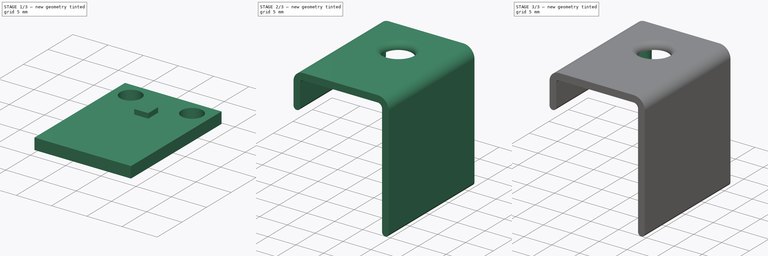
[diagram: build sequence overview — one tinted view per stage of 3, left to right]
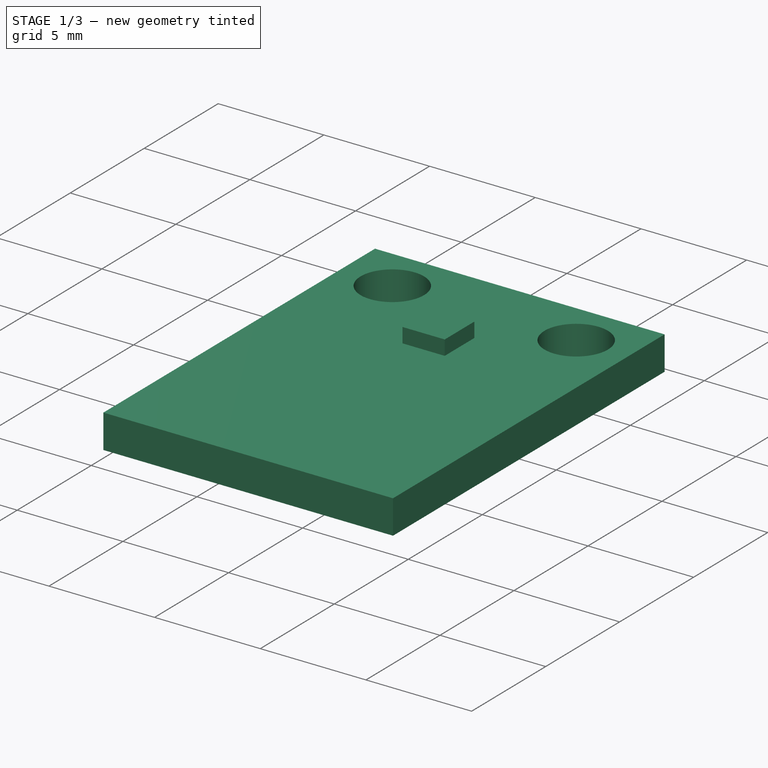
[diagram: stage 1 of 3 — iso view after this stage's code; geometry added in this stage tinted green]
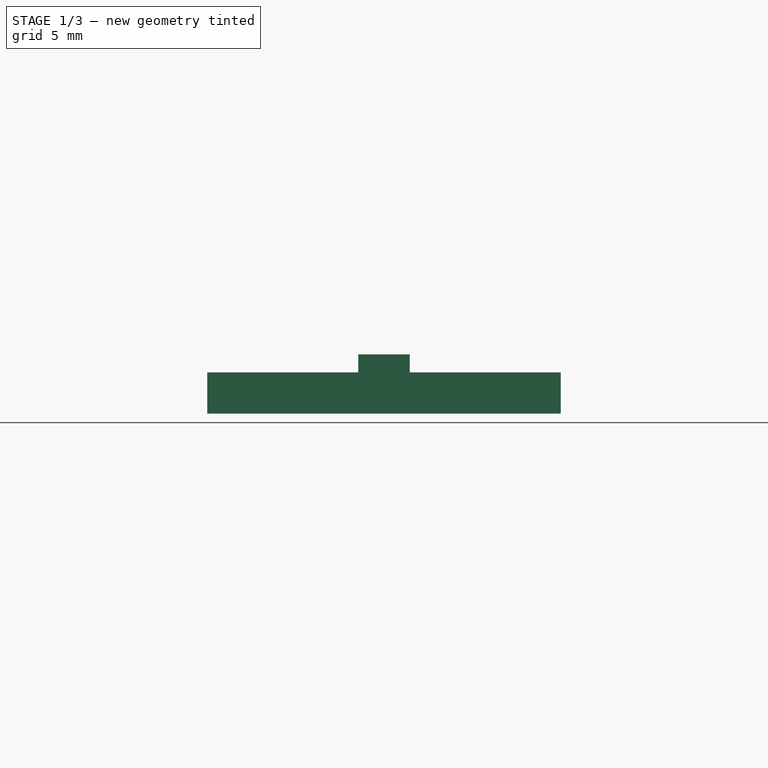
[diagram: stage 1 of 3 — front view after this stage's code; geometry added in this stage tinted green]
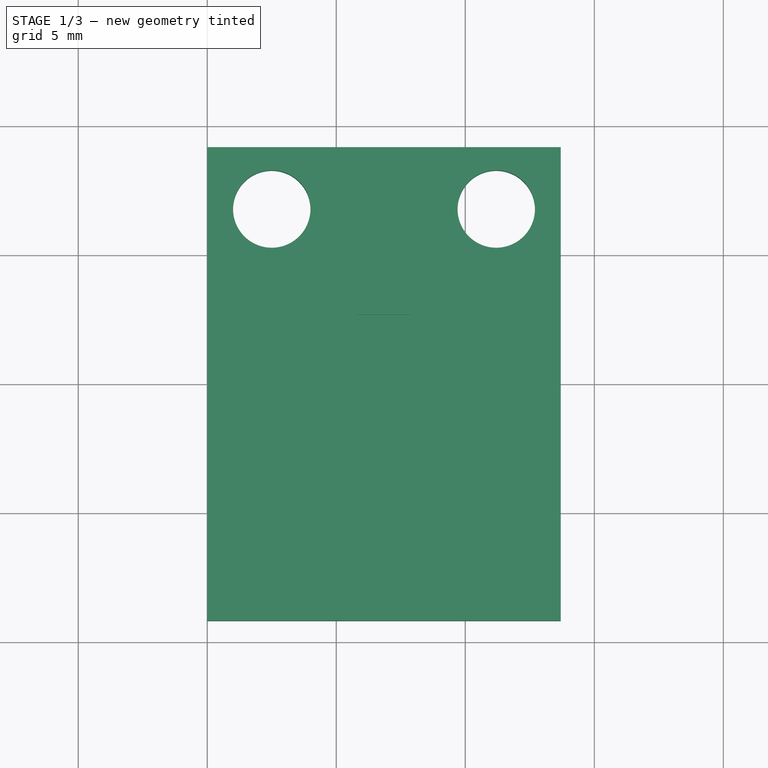
[diagram: stage 1 of 3 — top view after this stage's code; geometry added in this stage tinted green]
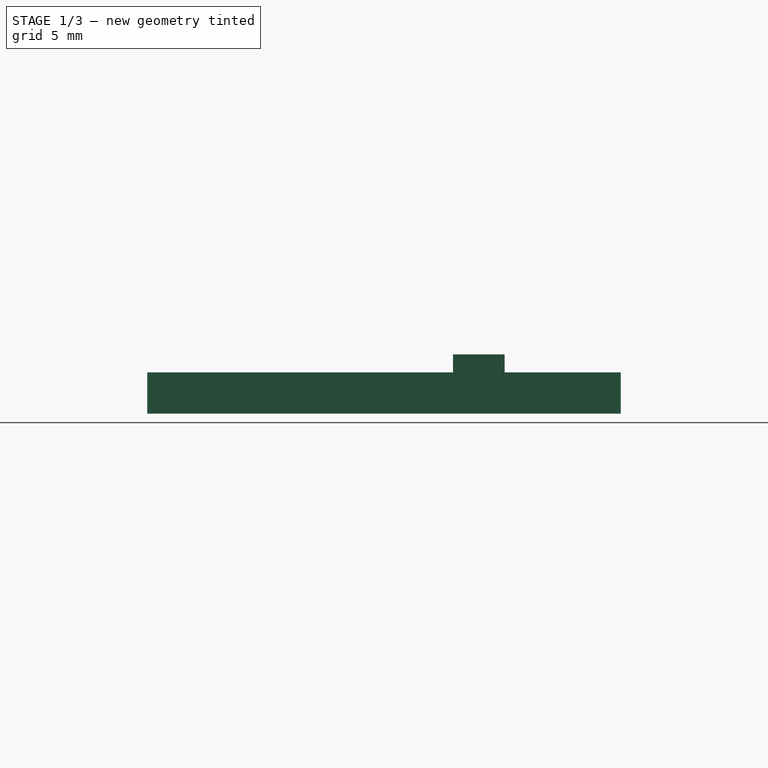
[diagram: stage 1 of 3 — right view after this stage's code; geometry added in this stage tinted green]
FCSTD DOCUMENT  (FreeCAD 0.19R27636 (Git))
Label: case
License: Creative Commons Attribution
LicenseURL: http://creativecommons.org/licenses/by/4.0/
objects: Sketcher::SketchObject×5, PartDesign::Pad×4, PartDesign::Body×2, PartDesign::Fillet×2, Spreadsheet::Sheet×1, PartDesign::ShapeBinder×1, Part::SubShapeBinder×1, PartDesign::Pocket×1
note: 30 computed .brp shape members not serialized (recipe doc carries the construction recipe); baked Part::Feature solids carry a one-line shape summary decoded from their .brp

FEATURE [Spreadsheet::Sheet] Spreadsheet  label="dim"
  PythonMode = false
  cells = A1=wall thickness; B1(wall_thickness)==1.2mm; A2=internal gaps; B2(internal_gaps)==0.5mm; A3=holes diameter; B3(holes_diameter)==3mm
FEATURE [Sketcher::SketchObject] Sketch003
  FullyConstrained = true
  MapMode = 5
  Support = -> [XY_Plane001]
  expr: Constraints[11] = <<dim>>.holes_diameter
  sketch-geometry (9):
    g0: LineSegment StartX=0 StartY=9.175 StartZ=0 EndX=13.7 EndY=9.175 EndZ=0
    g1: LineSegment StartX=13.7 StartY=9.175 StartZ=0 EndX=13.7 EndY=-9.175 EndZ=0
    g2: LineSegment StartX=13.7 StartY=-9.175 StartZ=0 EndX=0 EndY=-9.175 EndZ=0
    g3: LineSegment StartX=0 StartY=-9.175 StartZ=0 EndX=0 EndY=9.175 EndZ=0
    g4: Circle CenterX=2.5 CenterY=6.775 CenterZ=0 NormalX=0 NormalY=0 NormalZ=1 AngleXU=0 Radius=1.5
    g5: Circle CenterX=11.2 CenterY=6.775 CenterZ=0 NormalX=0 NormalY=0 NormalZ=1 AngleXU=0 Radius=1.5
    g6: LineSegment [constr] StartX=4 StartY=6.775 StartZ=0 EndX=9.7 EndY=6.775 EndZ=0
    g7: LineSegment [constr] StartX=6.85 StartY=6.775 StartZ=0 EndX=6.85 EndY=9.175 EndZ=0
    g8: LineSegment [constr] StartX=2.5 StartY=8.275 StartZ=0 EndX=2.5 EndY=9.175 EndZ=0
  constraints (27):
    c: Coincident(g0,g1)
    c: Coincident(g1,g2)
    c: Coincident(g2,g3)
    c: Coincident(g3,g0)
    c: Horizontal(g0)
    c: Horizontal(g2)
    c: Vertical(g1)
    c: Vertical(g3)
    c: Distance(g0) = 13.7
    c: Distance(g3) = 18.35
    c: Symmetric(g0,g2,g-1)
    c: Diameter(g4) = 3
    c: Equal(g4,g5)
    c: PointOnObject(g6,g4)
    c: PointOnObject(g6,g5)
    c: Distance(g6) = 5.7
    c: Horizontal(g6)
    c: Perpendicular(g4,g6)
    c: Perpendicular(g5,g6)
    c: Vertical(g7)
    c: Symmetric(g0,g0,g7)
    c: Symmetric(g6,g6,g7)
    c: PointOnObject(g8,g4)
    c: PointOnObject(g8,g0)
    c: Vertical(g8)
    c: Distance(g8) = 0.9
    c: Perpendicular(g4,g8)
FEATURE [PartDesign::Pad] Pad002
  ClaimChildren = false
  Direction = (1,1,1)
  Fit = 0
  FitJoin = 0
  InnerFit = 0
  InnerFitJoin = 0
  InnerTaperAngle = 0
  InnerTaperAngleRev = 0
  Length = 1.6
  Length2 = 100
  Midplane = true
  NewSolid = false
  Profile = -> Sketch003
  Suppress = false
  Type = 0
  UsePipeForDraft = true
FEATURE [Sketcher::SketchObject] Sketch004
  ExternalGeometry = -> [Pad002]
  FullyConstrained = true
  MapMode = 5
  Placement = pos=(0,0,0.8) rot=(0,0,1;0rad)
  Support = -> [Pad002]
  sketch-geometry (8):
    g0: LineSegment StartX=5.85 StartY=4.675 StartZ=0 EndX=7.85 EndY=4.675 EndZ=0
    g1: LineSegment StartX=7.85 StartY=4.675 StartZ=0 EndX=7.85 EndY=2.675 EndZ=0
    g2: LineSegment StartX=7.85 StartY=2.675 StartZ=0 EndX=5.85 EndY=2.675 EndZ=0
    g3: LineSegment StartX=5.85 StartY=2.675 StartZ=0 EndX=5.85 EndY=4.675 EndZ=0
    g4: LineSegment [constr] StartX=11.2 StartY=5.275 StartZ=0 EndX=11.2 EndY=4.675 EndZ=0
    g5: LineSegment [constr] StartX=11.2 StartY=4.675 StartZ=0 EndX=7.85 EndY=4.675 EndZ=0
    g6: LineSegment [constr] StartX=5.85 StartY=4.675 StartZ=0 EndX=2.5 EndY=4.675 EndZ=0
    g7: LineSegment [constr] StartX=2.5 StartY=4.675 StartZ=0 EndX=2.5 EndY=5.275 EndZ=0
  constraints (24):
    c: Coincident(g0,g1)
    c: Coincident(g1,g2)
    c: Coincident(g2,g3)
    c: Coincident(g3,g0)
    c: Horizontal(g0)
    c: Horizontal(g2)
    c: Vertical(g1)
    c: Vertical(g3)
    c: PointOnObject(g4,g-3)
    c: Vertical(g4)
    c: Coincident(g5,g4)
    c: Coincident(g5,g0)
    c: Horizontal(g5)
    c: Distance(g4) = 0.6
    c: Equal(g0,g1)
    c: Distance(g0) = 2
    c: Coincident(g6,g0)
    c: Horizontal(g6)
    c: Coincident(g7,g6)
    c: PointOnObject(g7,g-4)
    c: Vertical(g7)
    c: Equal(g6,g5)
    c: Perpendicular(g-4,g7)
    c: Perpendicular(g-3,g4)
FEATURE [PartDesign::Pad] Pad003
  BaseFeature = -> Pad002
  ClaimChildren = false
  Direction = (1,1,1)
  Fit = 0
  FitJoin = 0
  InnerFit = 0
  InnerFitJoin = 0
  InnerTaperAngle = 0
  InnerTaperAngleRev = 0
  Length = 0.7
  Length2 = 100
  NewSolid = false
  Profile = -> Sketch004
  Suppress = false
  Type = 0
  UsePipeForDraft = true
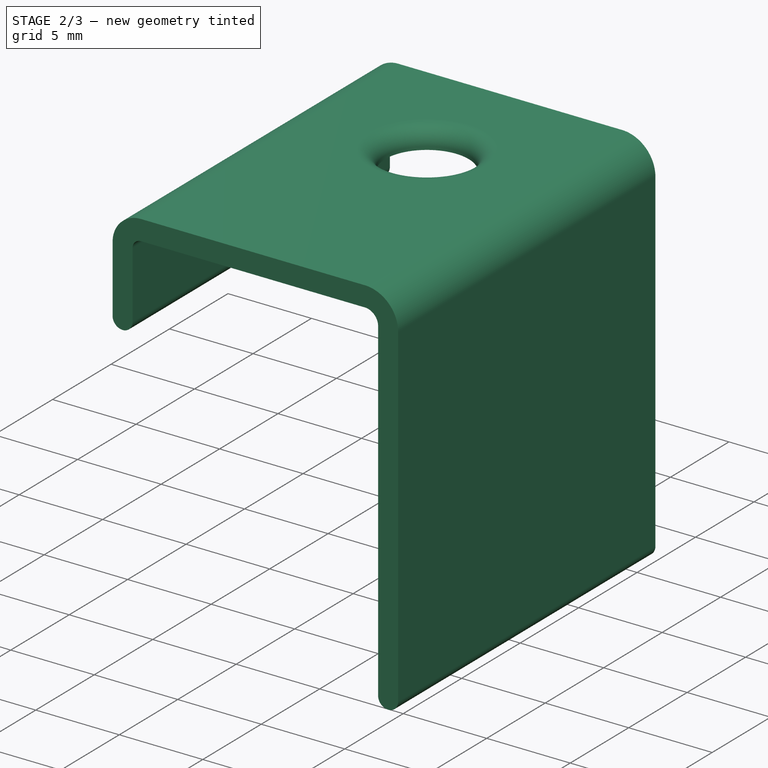
[diagram: stage 2 of 3 — iso view after this stage's code; geometry added in this stage tinted green]
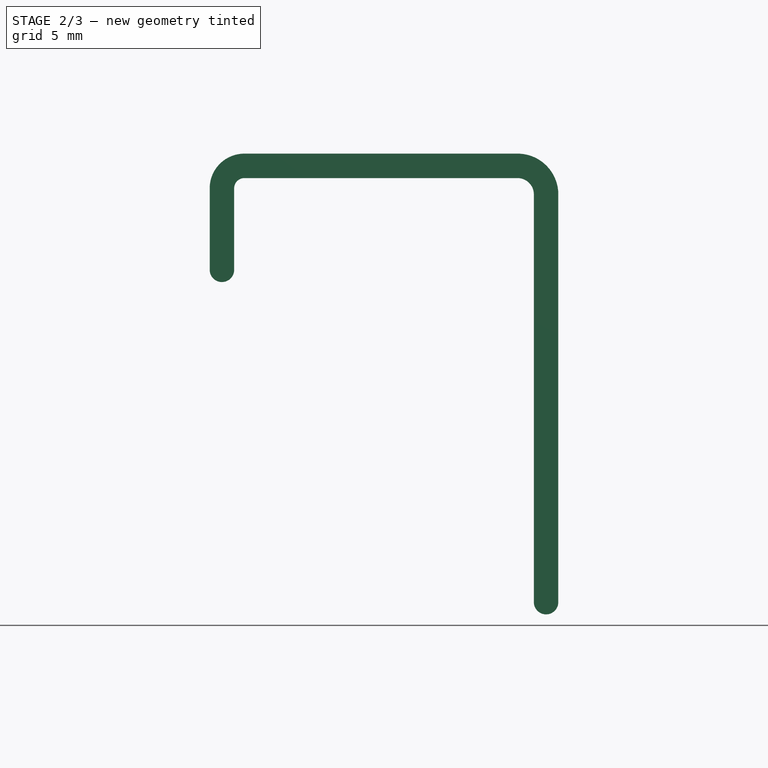
[diagram: stage 2 of 3 — front view after this stage's code; geometry added in this stage tinted green]
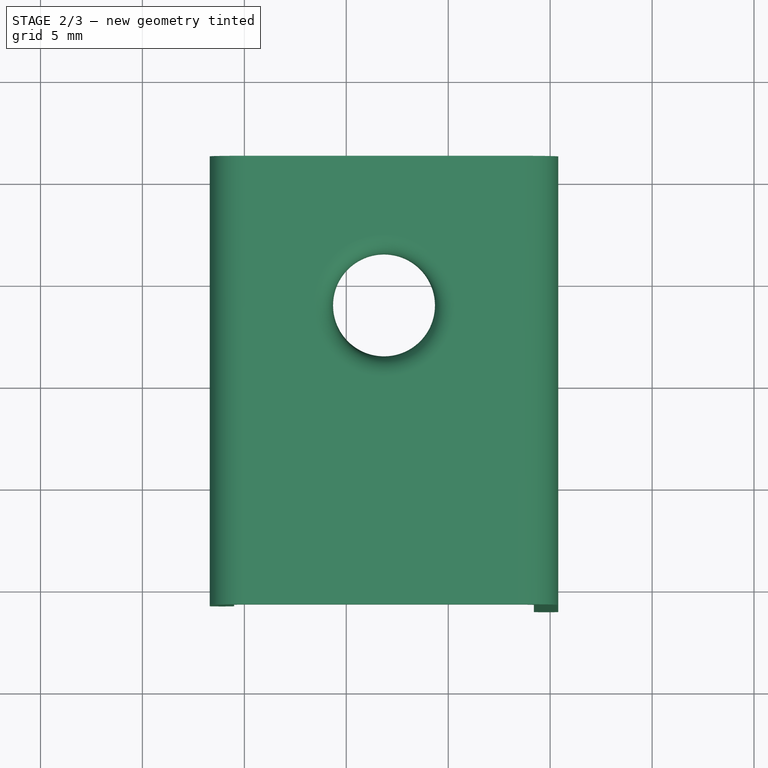
[diagram: stage 2 of 3 — top view after this stage's code; geometry added in this stage tinted green]
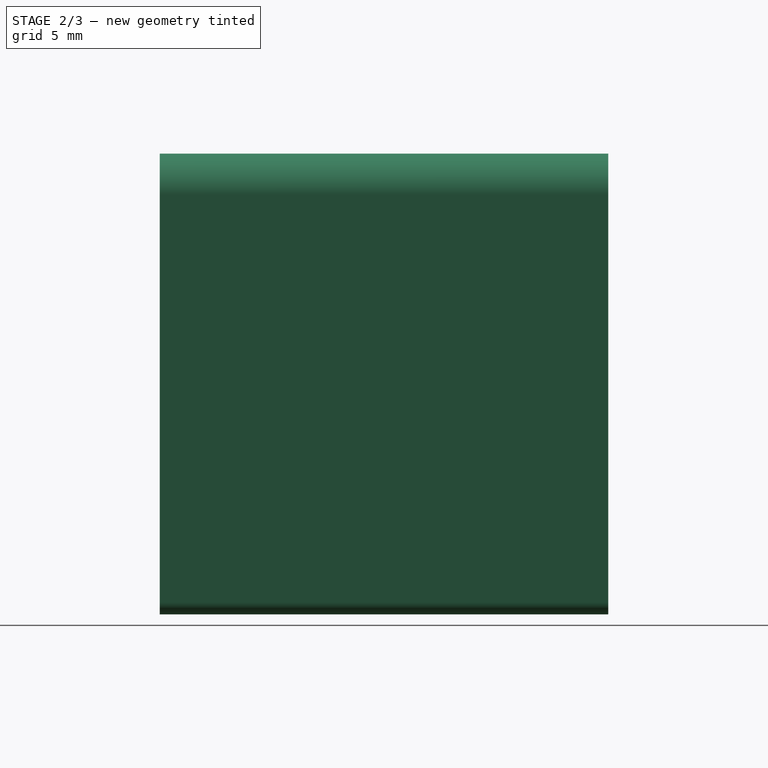
[diagram: stage 2 of 3 — right view after this stage's code; geometry added in this stage tinted green]
FEATURE [PartDesign::Body] Body001  label="Sensor"
  AutoGroupSolids = false
  ExportMode = 0
  Group = -> [Sketch003,Pad002,Sketch004,Pad003]
  Origin = -> Origin001
  Tip = -> Pad003
  _ExportChildren = -> [Pad002,Pad003]
  _GroupVersion = 1
FEATURE [PartDesign::ShapeBinder] ShapeBinder
  Support = -> [Body001]
  TraceSupport = false
FEATURE [Part::SubShapeBinder] Import  label="Import(Pad003)"
  BindCopyOnChange = 0
  BindMode = 0
  ClaimChildren = false
  Context = -> Body [Import.]
  FillStyle = 0
  Fuse = false
  MakeFace = false
  PartialLoad = false
  Relative = true
  Support = -> [Body001[Pad003.]]
  _Version = 7
FEATURE [Sketcher::SketchObject] Sketch
  ExternalGeometry = -> [Import]
  FullyConstrained = true
  MapMode = 5
  Placement = pos=(0,0,0) rot=(1,0,0;1.5708rad)
  Support = -> [XZ_Plane]
  expr: Constraints[12] = <<dim>>.internal_gaps
  expr: Constraints[13] = <<dim>>.wall_thickness
  expr: Constraints[14] = <<dim>>.wall_thickness
  expr: Constraints[28] = <<dim>>.internal_gaps
  sketch-geometry (12):
    g0: LineSegment StartX=2e-16 StartY=2.9 StartZ=0 EndX=13.4 EndY=2.9 EndZ=0
    g1: LineSegment StartX=15.4 StartY=0.9 StartZ=0 EndX=15.4 EndY=-19.1 EndZ=0
    g2: LineSegment StartX=-1.7 StartY=-2.8 StartZ=0 EndX=-1.7 EndY=1.2 EndZ=0
    g3: LineSegment StartX=1e-16 StartY=1.7 StartZ=0 EndX=13.4 EndY=1.7 EndZ=0
    g4: LineSegment StartX=14.2 StartY=0.9 StartZ=0 EndX=14.2 EndY=-19.1 EndZ=0
    g5: LineSegment StartX=-0.5 StartY=-2.8 StartZ=0 EndX=-0.5 EndY=1.2 EndZ=0
    g6: ArcOfCircle CenterX=13.4 CenterY=0.9 CenterZ=0 NormalX=0 NormalY=0 NormalZ=1 AngleXU=0 Radius=2 StartAngle=0 EndAngle=1.5708
    g7: ArcOfCircle CenterX=0 CenterY=1.2 CenterZ=0 NormalX=0 NormalY=0 NormalZ=1 AngleXU=0 Radius=1.7 StartAngle=1.5708 EndAngle=3.14159
    g8: ArcOfCircle CenterX=0 CenterY=1.2 CenterZ=0 NormalX=0 NormalY=0 NormalZ=1 AngleXU=0 Radius=0.5 StartAngle=1.5708 EndAngle=3.14159
    g9: ArcOfCircle CenterX=13.4 CenterY=0.9 CenterZ=0 NormalX=0 NormalY=0 NormalZ=1 AngleXU=0 Radius=0.8 StartAngle=0 EndAngle=1.5708
    g10: ArcOfCircle CenterX=14.8 CenterY=-19.1 CenterZ=0 NormalX=0 NormalY=0 NormalZ=1 AngleXU=0 Radius=0.6 StartAngle=3.14159 EndAngle=6.28319
    g11: ArcOfCircle CenterX=-1.1 CenterY=-2.8 CenterZ=0 NormalX=0 NormalY=0 NormalZ=1 AngleXU=0 Radius=0.6 StartAngle=3.14159 EndAngle=6.28319
  constraints (29):
    c: Horizontal(g0)
    c: Vertical(g2)
    c: Horizontal(g3)
    c: Vertical(g5)
    c: Tangent(g0,g6) = 1.5708
    c: Tangent(g1,g6) = 1.5708
    c: Tangent(g2,g7) = 1.5708
    c: Tangent(g0,g7) = 1.5708
    c: Tangent(g3,g8) = 1.5708
    c: Tangent(g5,g8) = 1.5708
    c: Tangent(g3,g9) = 1.5708
    c: Tangent(g4,g9) = 1.5708
    c: Distance(g-1,g5) = 0.5
    c: Distance(g5,g2) = 1.2
    c: Distance(g3,g0) = 1.2
    c: Coincident(g6,g9)
    c: Vertical(g7,g8)
    c: PointOnObject(g7,g-2)
    c: Angle(g0,g1) = 1.5708
    c: Distance(g1) = 20
    c: Radius(g6) = 2
    c: Tangent(g11,g2) = 1.5708
    c: Tangent(g11,g5) = -1.5708
    c: Tangent(g10,g4) = -1.5708
    c: Tangent(g10,g1) = 1.5708
    c: Equal(g10,g11)
    c: Distance(g2) = 4
    c: Distance(g-3,g3) = 0.2
    c: DistanceX(g-4,g4) = 0.5
FEATURE [PartDesign::Pad] Pad
  ClaimChildren = false
  Direction = (1,1,1)
  Fit = 0
  FitJoin = 0
  InnerFit = 0
  InnerFitJoin = 0
  InnerTaperAngle = 0
  InnerTaperAngleRev = 0
  Length = 22
  Length2 = 100
  Midplane = true
  NewSolid = false
  Placement = pos=(0,0,0) rot=(1,0,0;1.5708rad)
  Profile = -> Sketch
  Suppress = false
  Type = 0
  UsePipeForDraft = true
FEATURE [Sketcher::SketchObject] Sketch001
  ExternalGeometry = -> [ShapeBinder]
  FullyConstrained = true
  MapMode = 5
  Placement = pos=(0,1.9e-15,2.9) rot=(0,0,1;3.14159rad)
  Support = -> [Pad]
  sketch-geometry (3):
    g0: Circle CenterX=-6.85 CenterY=-3.675 CenterZ=0 NormalX=0 NormalY=0 NormalZ=1 AngleXU=0 Radius=2.5
    g1: LineSegment [constr] StartX=-5.85 StartY=-4.675 StartZ=0 EndX=-7.85 EndY=-2.675 EndZ=0
    g2: LineSegment [constr] StartX=-7.85 StartY=-4.675 StartZ=0 EndX=-5.85 EndY=-2.675 EndZ=0
  constraints (7):
    c: Diameter(g0) = 5
    c: PointOnObject(g0,g1)
    c: Coincident(g1,g-7)
    c: Coincident(g-5,g1)
    c: Coincident(g2,g-6)
    c: Coincident(g2,g-7)
    c: PointOnObject(g0,g2)
FEATURE [PartDesign::Pocket] Pocket
  BaseFeature = -> Pad
  ClaimChildren = false
  Fit = 0
  FitJoin = 0
  InnerFit = 0
  InnerFitJoin = 0
  InnerTaperAngle = 0
  InnerTaperAngleRev = 0
  Length = 5
  Length2 = 100
  NewSolid = false
  Placement = pos=(0,0,0) rot=(1,0,0;1.5708rad)
  Profile = -> Sketch001
  Suppress = false
  Type = 2
  UsePipeForDraft = true
FEATURE [PartDesign::Fillet] Fillet
  Base = -> Pocket [Edge5]
  BaseFeature = -> Pocket
  NewSolid = false
  Placement = pos=(0,0,0) rot=(1,0,0;1.5708rad)
  Radius = 1
  SupportTransform = false
  Suppress = false
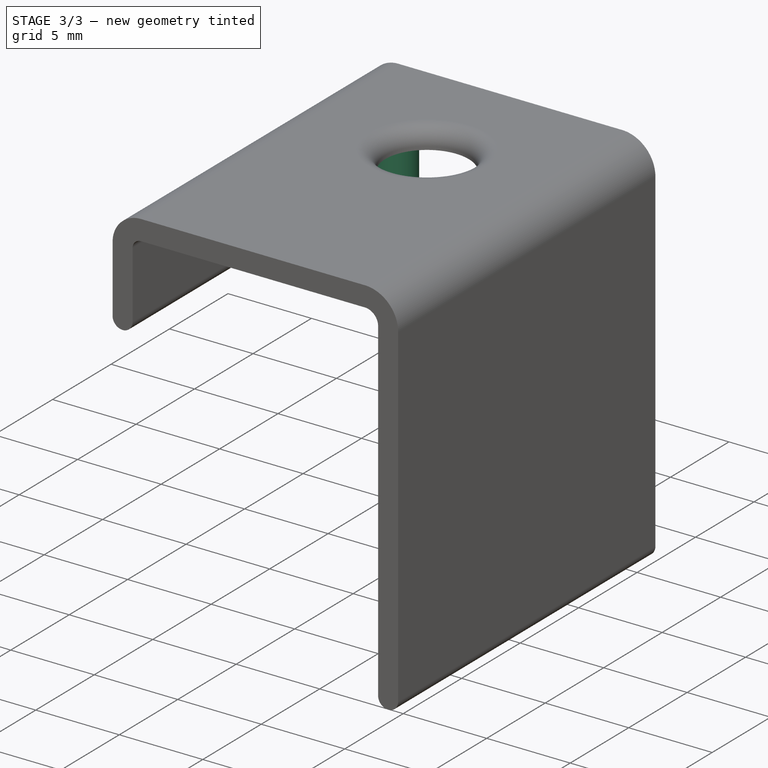
[diagram: stage 3 of 3 — iso view after this stage's code; geometry added in this stage tinted green]
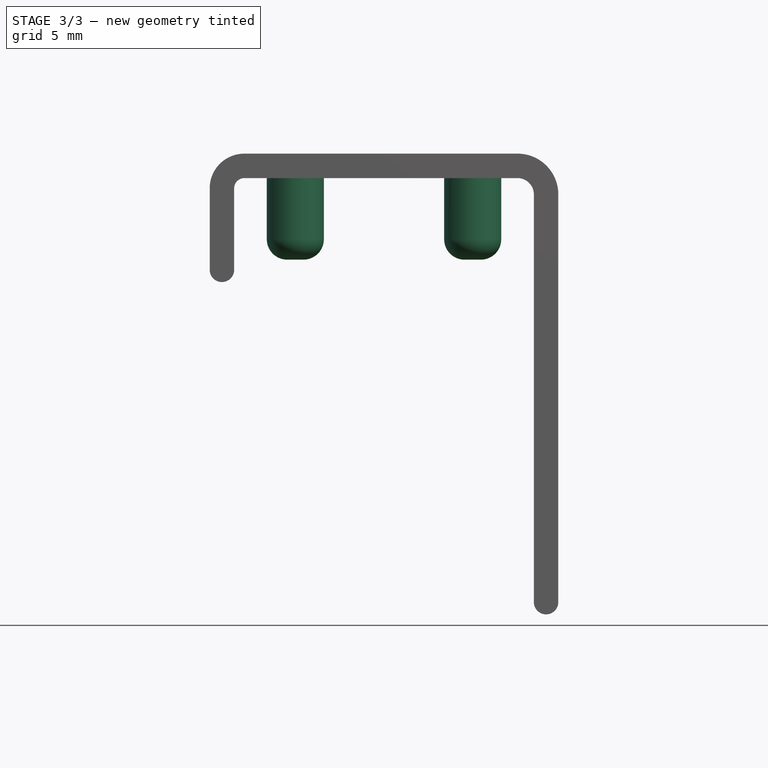
[diagram: stage 3 of 3 — front view after this stage's code; geometry added in this stage tinted green]
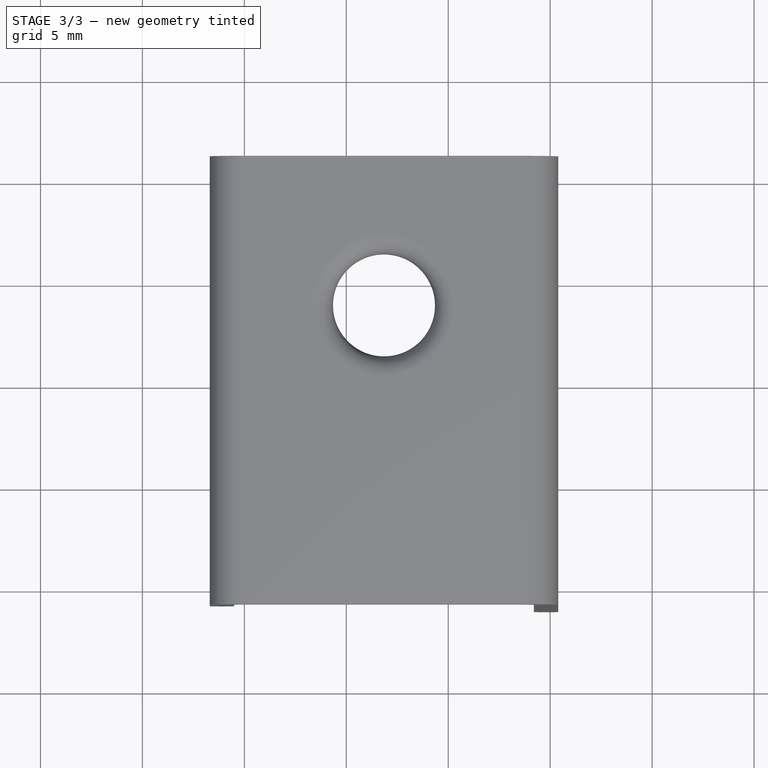
[diagram: stage 3 of 3 — top view after this stage's code; geometry added in this stage tinted green]
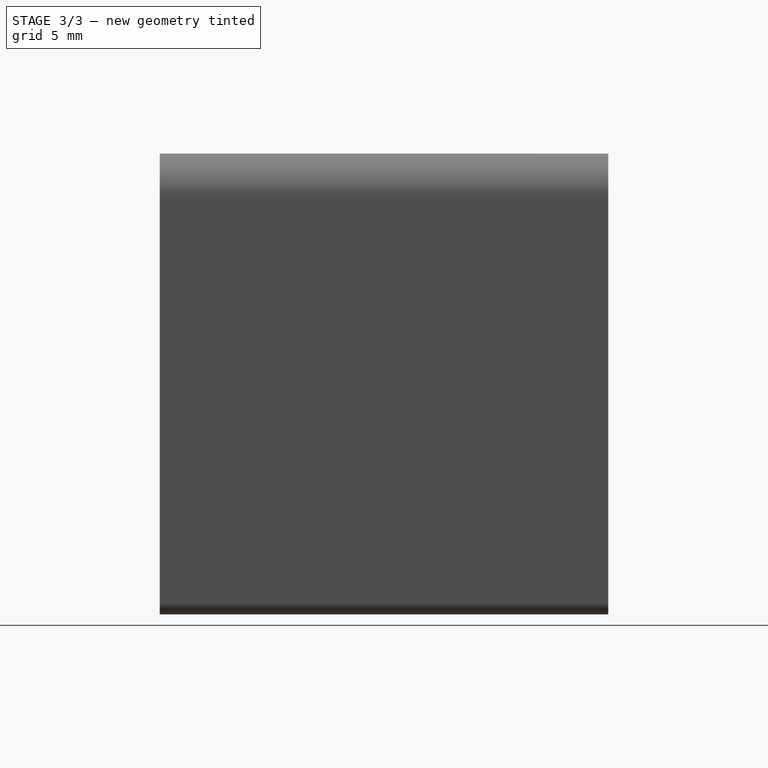
[diagram: stage 3 of 3 — right view after this stage's code; geometry added in this stage tinted green]
FEATURE [Sketcher::SketchObject] Sketch002
  ExternalGeometry = -> [ShapeBinder]
  FullyConstrained = true
  MapMode = 5
  Placement = pos=(0,1.9e-15,1.7) rot=(1,0,0;3.14159rad)
  Support = -> [Fillet]
  expr: Constraints[1] = <<dim>>.holes_diameter - 0.2mm
  sketch-geometry (2):
    g0: Circle CenterX=2.5 CenterY=-6.775 CenterZ=0 NormalX=0 NormalY=0 NormalZ=1 AngleXU=0 Radius=1.4
    g1: Circle CenterX=11.2 CenterY=-6.775 CenterZ=0 NormalX=0 NormalY=0 NormalZ=1 AngleXU=0 Radius=1.4
  constraints (4):
    c: Equal(g1,g0)
    c: Diameter(g0) = 2.8
    c: Coincident(g-4,g1)
    c: Coincident(g-3,g0)
FEATURE [PartDesign::Pad] Pad001
  BaseFeature = -> Fillet
  ClaimChildren = false
  Direction = (1,1,1)
  Fit = 0
  FitJoin = 0
  InnerFit = 0
  InnerFitJoin = 0
  InnerTaperAngle = 0
  InnerTaperAngleRev = 0
  Length = 4
  Length2 = 100
  NewSolid = false
  Placement = pos=(0,0,0) rot=(1,0,0;1.5708rad)
  Profile = -> Sketch002
  Suppress = false
  Type = 0
  UsePipeForDraft = true
FEATURE [PartDesign::Fillet] Fillet001
  Base = -> Pad001 [Edge47,Edge45]
  BaseFeature = -> Pad001
  NewSolid = false
  Placement = pos=(0,0,0) rot=(1,0,0;1.5708rad)
  Radius = 1
  SupportTransform = false
  Suppress = false
FEATURE [PartDesign::Body] Body  label="Case"
  AutoGroupSolids = false
  ExportMode = 0
  Group = -> [ShapeBinder,Sketch,Pad,Sketch001,Pocket,Fillet,Sketch002,Pad001,Fillet001,Import]
  Origin = -> Origin
  Tip = -> Fillet001
  _ExportChildren = -> [ShapeBinder,Pad,Pocket,Fillet,Pad001,Fillet001,Import]
  _GroupVersion = 1
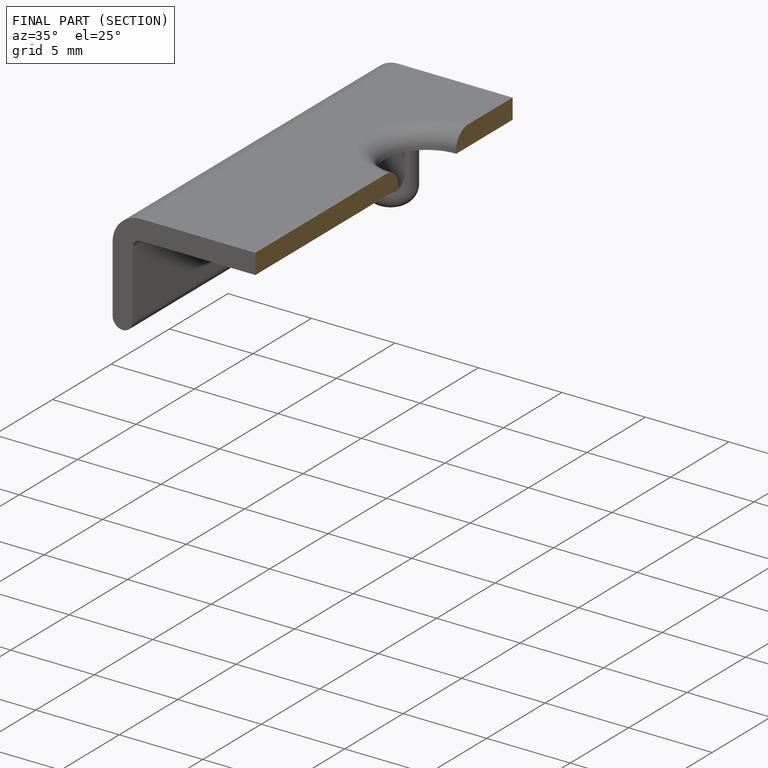
[diagram: finished part — half-section view (interior)]
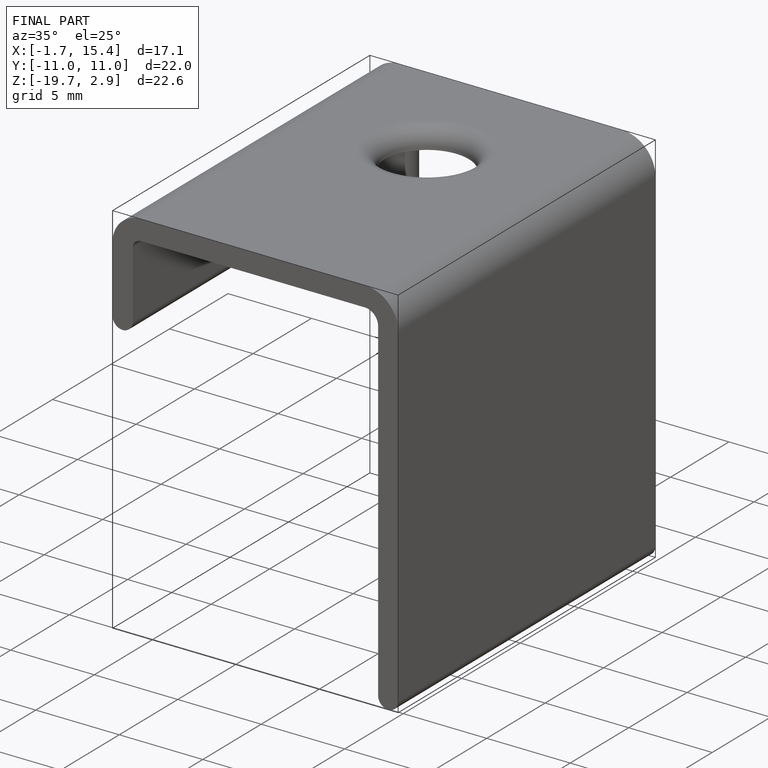
[diagram: finished part — iso view with bounding-box wireframe]
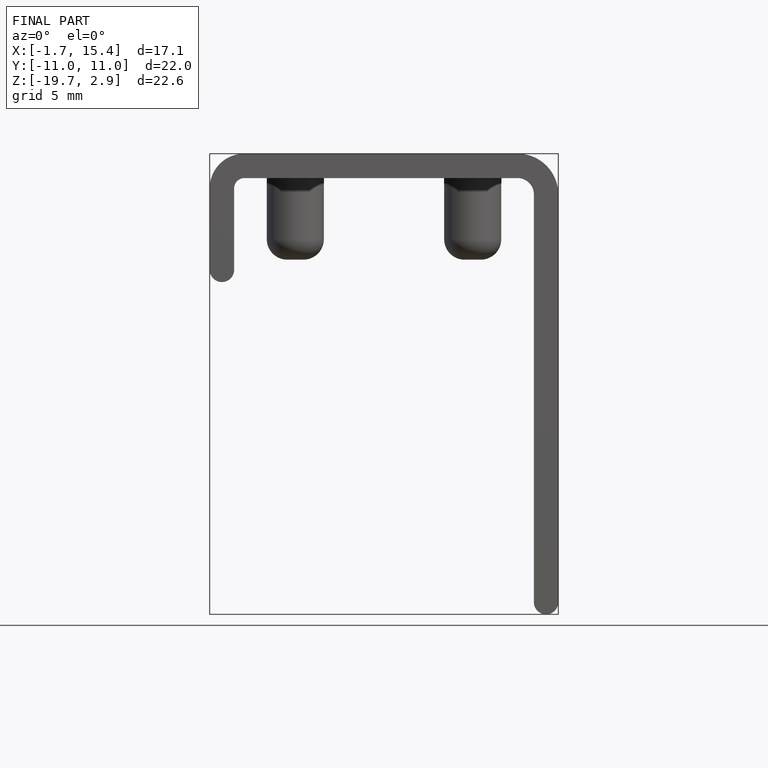
[diagram: finished part — front view with bounding-box wireframe]
